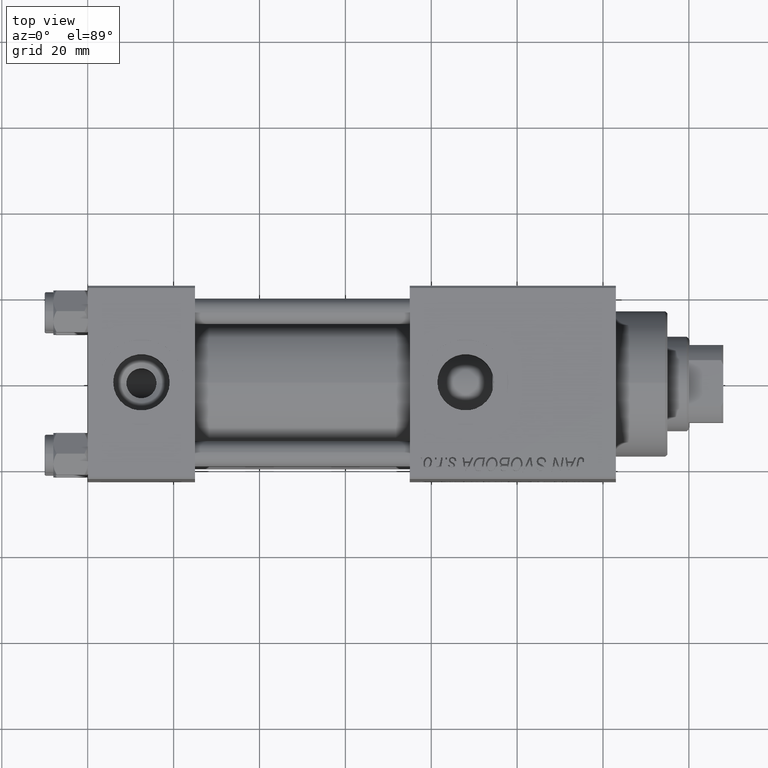
[diagram: clean part render]
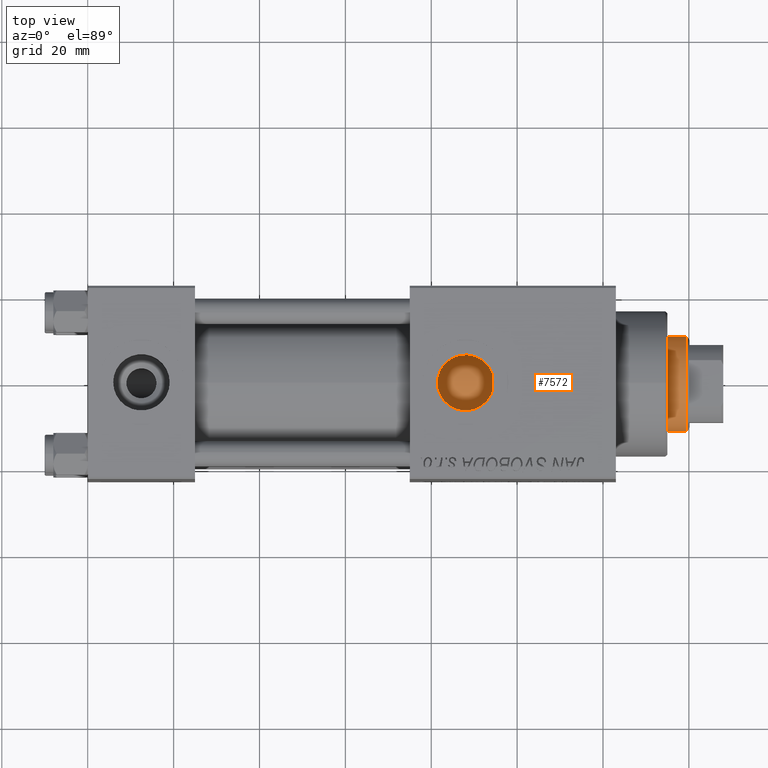
[diagram: same view with one face highlighted and labeled with its STEP entity id]
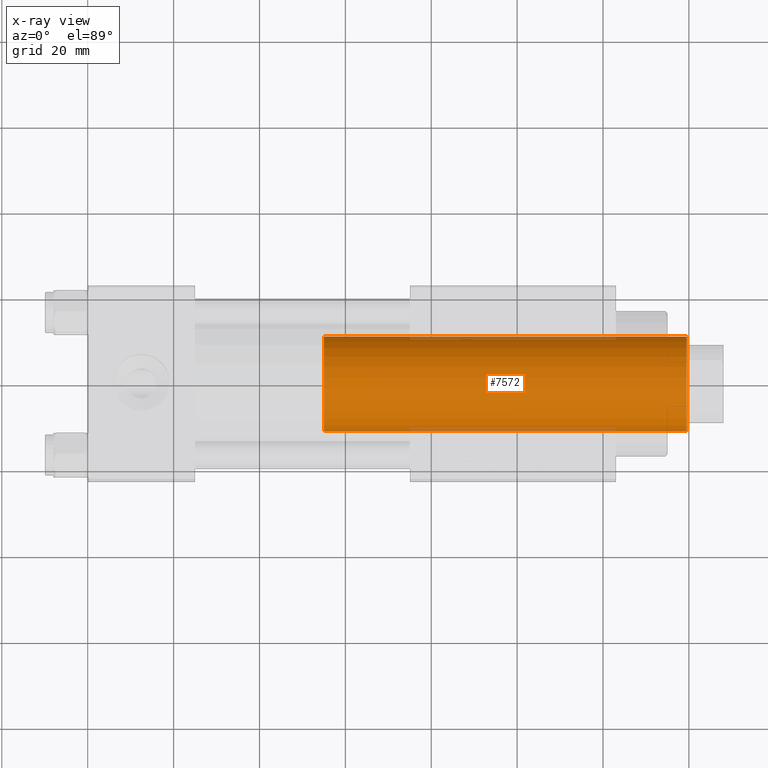
[diagram: x-ray of the same camera — body ghosted, the highlighted face saturated]
A machine part, top view. The second image highlights one B-rep face of the part: STEP entity #7572.
The next image is the same camera in x-ray: the body ghosted, the highlighted face saturated — about 4% of this face is hidden behind the body in this view.
In plain terms, the highlighted cylindrical surface (partial cylindrical patch) has radius 11 mm, axis along (-1, 0, 0).
Its self-contained STEP definition (entity closure, byte-faithful):
#1607 = VECTOR ( 'NONE', #21912, 1000.000000000000000 ) ;
#4353 = AXIS2_PLACEMENT_3D ( 'NONE', #17514, #6100, #21593 ) ;
#4959 = VERTEX_POINT ( 'NONE', #23857 ) ;
#6100 = DIRECTION ( 'NONE',  ( 0.000000000000000000, 0.000000000000000000, -1.000000000000000000 ) ) ;
#7203 = AXIS2_PLACEMENT_3D ( 'NONE', #38503, #33736, #22578 ) ;
#7572 = ADVANCED_FACE ( 'NONE', ( #27706 ), #8167, .T. ) ;
#8167 = CYLINDRICAL_SURFACE ( 'NONE', #22086, 11.00000000000000000 ) ;
#9781 = VECTOR ( 'NONE', #24219, 1000.000000000000000 ) ;
#10831 = CIRCLE ( 'NONE', #4353, 11.00000000000000000 ) ;
#13389 = ORIENTED_EDGE ( 'NONE', *, *, #31928, .F. ) ;
#16580 = CARTESIAN_POINT ( 'NONE',  ( 11.00000000000000000, 1.347111479062088405E-15, 115.0000000000000000 ) ) ;
#16581 = CARTESIAN_POINT ( 'NONE',  ( 11.00000000000000000, 1.347111479062088405E-15, 114.5000000000000142 ) ) ;
#17514 = CARTESIAN_POINT ( 'NONE',  ( 0.000000000000000000, 0.000000000000000000, 114.5000000000000142 ) ) ;
#18351 = VERTEX_POINT ( 'NONE', #43152 ) ;
#19376 = CIRCLE ( 'NONE', #7203, 11.00000000000000000 ) ;
#19857 = ORIENTED_EDGE ( 'NONE', *, *, #30010, .T. ) ;
#21593 = DIRECTION ( 'NONE',  ( 1.000000000000000000, 0.000000000000000000, 0.000000000000000000 ) ) ;
#21912 = DIRECTION ( 'NONE',  ( -0.000000000000000000, -0.000000000000000000, -1.000000000000000000 ) ) ;
#22086 = AXIS2_PLACEMENT_3D ( 'NONE', #35321, #23668, #30760 ) ;
#22578 = DIRECTION ( 'NONE',  ( 1.000000000000000000, 0.000000000000000000, 0.000000000000000000 ) ) ;
#23668 = DIRECTION ( 'NONE',  ( -0.000000000000000000, -0.000000000000000000, -1.000000000000000000 ) ) ;
#23857 = CARTESIAN_POINT ( 'NONE',  ( 11.00000000000000000, 1.347111479062088405E-15, 30.00000000000000000 ) ) ;
#24115 = EDGE_CURVE ( 'NONE', #18351, #4959, #19376, .T. ) ;
#24219 = DIRECTION ( 'NONE',  ( -0.000000000000000000, -0.000000000000000000, -1.000000000000000000 ) ) ;
#27706 = FACE_OUTER_BOUND ( 'NONE', #39837, .T. ) ;
#30010 = EDGE_CURVE ( 'NONE', #33803, #18351, #33070, .T. ) ;
#30760 = DIRECTION ( 'NONE',  ( -1.000000000000000000, 0.000000000000000000, 0.000000000000000000 ) ) ;
#31928 = EDGE_CURVE ( 'NONE', #39464, #4959, #42700, .T. ) ;
#33070 = LINE ( 'NONE', #33319, #1607 ) ;
#33319 = CARTESIAN_POINT ( 'NONE',  ( -11.00000000000000000, 0.000000000000000000, 115.0000000000000000 ) ) ;
#33736 = DIRECTION ( 'NONE',  ( 0.000000000000000000, 0.000000000000000000, 1.000000000000000000 ) ) ;
#33803 = VERTEX_POINT ( 'NONE', #49642 ) ;
#35321 = CARTESIAN_POINT ( 'NONE',  ( 0.000000000000000000, 0.000000000000000000, 115.0000000000000000 ) ) ;
#38503 = CARTESIAN_POINT ( 'NONE',  ( 0.000000000000000000, 0.000000000000000000, 30.00000000000000000 ) ) ;
#39464 = VERTEX_POINT ( 'NONE', #16581 ) ;
#39837 = EDGE_LOOP ( 'NONE', ( #13389, #46496, #19857, #39913 ) ) ;
#39913 = ORIENTED_EDGE ( 'NONE', *, *, #24115, .T. ) ;
#42700 = LINE ( 'NONE', #16580, #9781 ) ;
#42876 = EDGE_CURVE ( 'NONE', #39464, #33803, #10831, .T. ) ;
#43152 = CARTESIAN_POINT ( 'NONE',  ( -11.00000000000000000, 0.000000000000000000, 30.00000000000000000 ) ) ;
#46496 = ORIENTED_EDGE ( 'NONE', *, *, #42876, .T. ) ;
#49642 = CARTESIAN_POINT ( 'NONE',  ( -11.00000000000000000, 0.000000000000000000, 114.5000000000000142 ) ) ;